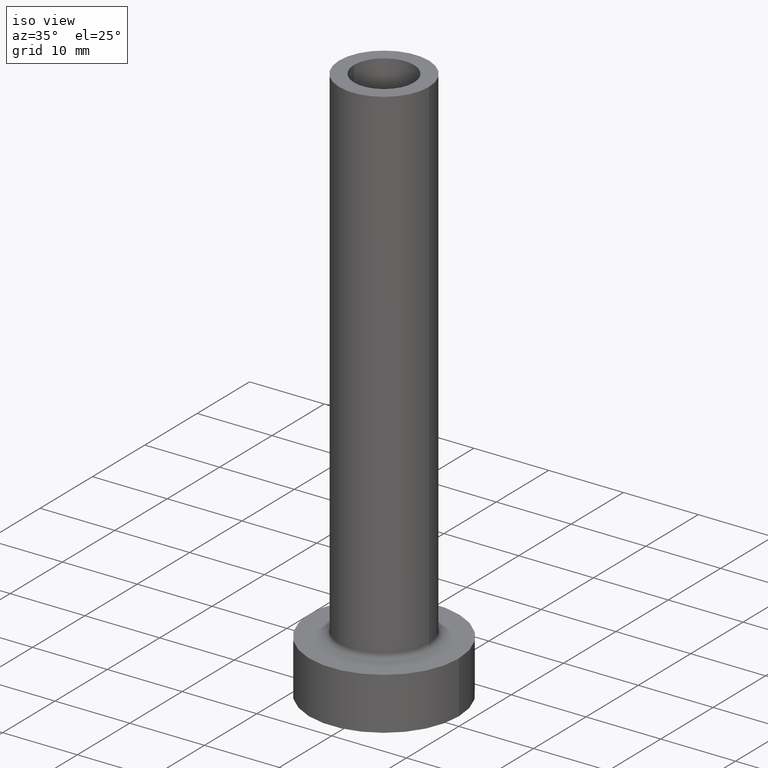
[diagram: clean part render]
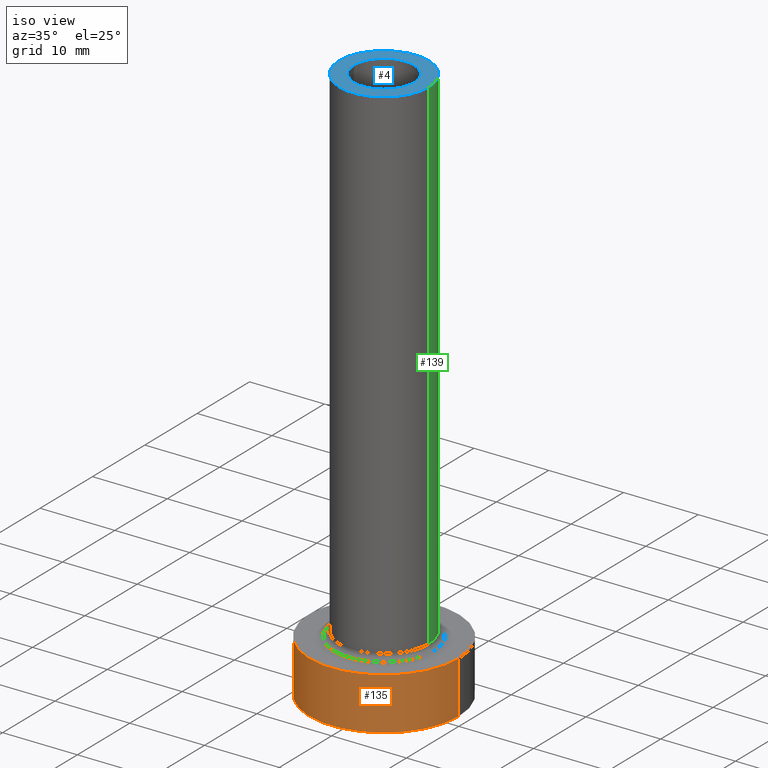
[diagram: same view with three faces highlighted in distinct colors, each labeled with its STEP entity id]
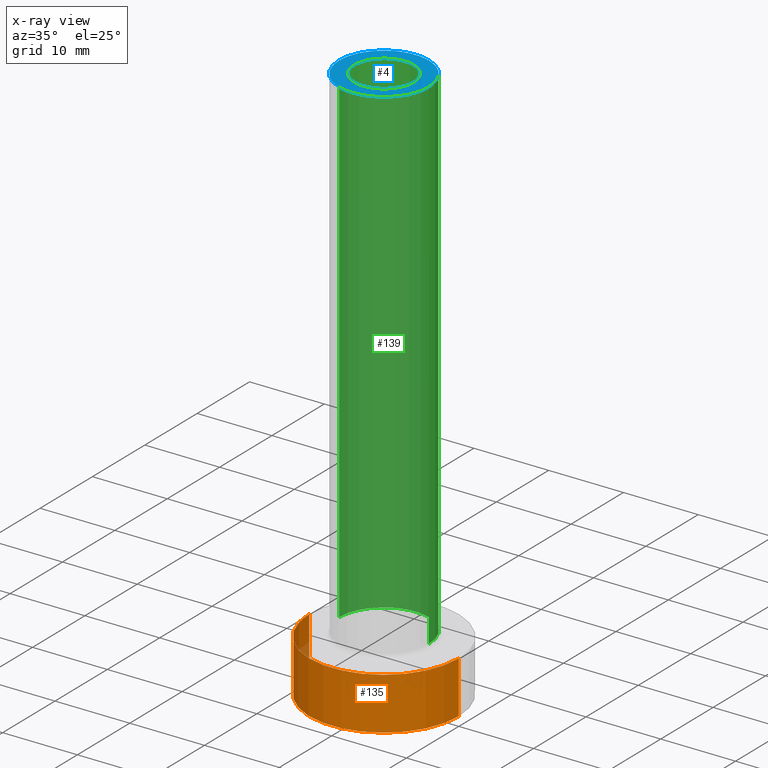
[diagram: x-ray of the same camera — body ghosted, the three highlighted faces saturated]
A machine part, iso view with three faces highlighted in distinct colors.
The next image is the same camera in x-ray (body ghosted, the three faces saturated) — at least one of them is partly hidden behind the body in this view.
Their STEP definitions:

[orange] entity #135 — the highlighted cylindrical surface (partial cylindrical patch) has radius 10 mm, axis along (-0, -0, -1).
#9 = VERTEX_POINT ( 'NONE', #399 ) ;
#10 = VERTEX_POINT ( 'NONE', #187 ) ;
#18 = LINE ( 'NONE', #234, #20 ) ;
#19 = VERTEX_POINT ( 'NONE', #330 ) ;
#20 = VECTOR ( 'NONE', #371, 1000.000000000000000 ) ;
#25 = DIRECTION ( 'NONE',  ( -0.000000000000000000, -0.000000000000000000, -1.000000000000000000 ) ) ;
#28 = DIRECTION ( 'NONE',  ( 1.000000000000000000, 0.000000000000000000, 0.000000000000000000 ) ) ;
#29 = EDGE_CURVE ( 'NONE', #9, #10, #445, .T. ) ;
#44 = CIRCLE ( 'NONE', #353, 10.00000000000000000 ) ;
#59 = CARTESIAN_POINT ( 'NONE',  ( -10.00000000000000000, 0.000000000000000000, 7.000000000000000000 ) ) ;
#104 = ORIENTED_EDGE ( 'NONE', *, *, #235, .F. ) ;
#105 = FACE_OUTER_BOUND ( 'NONE', #379, .T. ) ;
#108 = DIRECTION ( 'NONE',  ( 0.000000000000000000, 0.000000000000000000, 1.000000000000000000 ) ) ;
#111 = EDGE_CURVE ( 'NONE', #19, #9, #232, .T. ) ;
#129 = ORIENTED_EDGE ( 'NONE', *, *, #250, .F. ) ;
#135 = ADVANCED_FACE ( 'NONE', ( #105 ), #269, .T. ) ;
#145 = ORIENTED_EDGE ( 'NONE', *, *, #29, .T. ) ;
#146 = CARTESIAN_POINT ( 'NONE',  ( 0.000000000000000000, 0.000000000000000000, 0.000000000000000000 ) ) ;
#176 = CARTESIAN_POINT ( 'NONE',  ( 0.000000000000000000, 0.000000000000000000, 7.000000000000000000 ) ) ;
#187 = CARTESIAN_POINT ( 'NONE',  ( 10.00000000000000000, 1.224646799147353256E-15, 0.000000000000000000 ) ) ;
#221 = DIRECTION ( 'NONE',  ( 1.000000000000000000, 0.000000000000000000, 0.000000000000000000 ) ) ;
#230 = ORIENTED_EDGE ( 'NONE', *, *, #111, .T. ) ;
#232 = LINE ( 'NONE', #59, #419 ) ;
#234 = CARTESIAN_POINT ( 'NONE',  ( 10.00000000000000000, 1.224646799147353256E-15, 7.000000000000000000 ) ) ;
#235 = EDGE_CURVE ( 'NONE', #364, #10, #18, .T. ) ;
#250 = EDGE_CURVE ( 'NONE', #19, #364, #44, .T. ) ;
#269 = CYLINDRICAL_SURFACE ( 'NONE', #455, 10.00000000000000000 ) ;
#330 = CARTESIAN_POINT ( 'NONE',  ( -10.00000000000000000, 0.000000000000000000, 7.000000000000000000 ) ) ;
#335 = DIRECTION ( 'NONE',  ( 0.000000000000000000, 0.000000000000000000, 1.000000000000000000 ) ) ;
#338 = DIRECTION ( 'NONE',  ( -1.000000000000000000, 0.000000000000000000, 0.000000000000000000 ) ) ;
#342 = CARTESIAN_POINT ( 'NONE',  ( 0.000000000000000000, 0.000000000000000000, 7.000000000000000000 ) ) ;
#353 = AXIS2_PLACEMENT_3D ( 'NONE', #176, #108, #28 ) ;
#364 = VERTEX_POINT ( 'NONE', #453 ) ;
#371 = DIRECTION ( 'NONE',  ( -0.000000000000000000, -0.000000000000000000, -1.000000000000000000 ) ) ;
#379 = EDGE_LOOP ( 'NONE', ( #104, #129, #230, #145 ) ) ;
#390 = AXIS2_PLACEMENT_3D ( 'NONE', #146, #335, #221 ) ;
#399 = CARTESIAN_POINT ( 'NONE',  ( -10.00000000000000000, 0.000000000000000000, 0.000000000000000000 ) ) ;
#419 = VECTOR ( 'NONE', #442, 1000.000000000000000 ) ;
#442 = DIRECTION ( 'NONE',  ( -0.000000000000000000, -0.000000000000000000, -1.000000000000000000 ) ) ;
#445 = CIRCLE ( 'NONE', #390, 10.00000000000000000 ) ;
#453 = CARTESIAN_POINT ( 'NONE',  ( 10.00000000000000000, 1.224646799147353256E-15, 7.000000000000000000 ) ) ;
#455 = AXIS2_PLACEMENT_3D ( 'NONE', #342, #25, #338 ) ;

[blue] entity #4 — the highlighted planar face has unit normal (0, 0, 1).
#2 = VERTEX_POINT ( 'NONE', #180 ) ;
#4 = ADVANCED_FACE ( 'NONE', ( #292, #119 ), #12, .T. ) ;
#12 = PLANE ( 'NONE',  #133 ) ;
#23 = CARTESIAN_POINT ( 'NONE',  ( 4.000000000000000000, 4.898587196589411843E-16, 75.00000000000001421 ) ) ;
#34 = EDGE_LOOP ( 'NONE', ( #459, #420 ) ) ;
#35 = CARTESIAN_POINT ( 'NONE',  ( -4.000000000000000000, 0.000000000000000000, 75.00000000000001421 ) ) ;
#42 = AXIS2_PLACEMENT_3D ( 'NONE', #429, #321, #220 ) ;
#47 = DIRECTION ( 'NONE',  ( 0.000000000000000000, 0.000000000000000000, 1.000000000000000000 ) ) ;
#87 = DIRECTION ( 'NONE',  ( 1.000000000000000000, 0.000000000000000000, 0.000000000000000000 ) ) ;
#94 = DIRECTION ( 'NONE',  ( 1.000000000000000000, 0.000000000000000000, 0.000000000000000000 ) ) ;
#103 = EDGE_CURVE ( 'NONE', #393, #2, #284, .T. ) ;
#112 = AXIS2_PLACEMENT_3D ( 'NONE', #198, #140, #276 ) ;
#119 = FACE_OUTER_BOUND ( 'NONE', #34, .T. ) ;
#133 = AXIS2_PLACEMENT_3D ( 'NONE', #402, #47, #358 ) ;
#140 = DIRECTION ( 'NONE',  ( 0.000000000000000000, 0.000000000000000000, 1.000000000000000000 ) ) ;
#150 = EDGE_LOOP ( 'NONE', ( #223, #406 ) ) ;
#165 = AXIS2_PLACEMENT_3D ( 'NONE', #241, #449, #94 ) ;
#180 = CARTESIAN_POINT ( 'NONE',  ( -6.000000000000000888, 0.000000000000000000, 75.00000000000001421 ) ) ;
#192 = CIRCLE ( 'NONE', #42, 4.000000000000000000 ) ;
#196 = VERTEX_POINT ( 'NONE', #23 ) ;
#198 = CARTESIAN_POINT ( 'NONE',  ( 0.000000000000000000, 0.000000000000000000, 75.00000000000001421 ) ) ;
#220 = DIRECTION ( 'NONE',  ( 1.000000000000000000, 0.000000000000000000, 0.000000000000000000 ) ) ;
#223 = ORIENTED_EDGE ( 'NONE', *, *, #434, .F. ) ;
#241 = CARTESIAN_POINT ( 'NONE',  ( 0.000000000000000000, 0.000000000000000000, 75.00000000000001421 ) ) ;
#244 = EDGE_CURVE ( 'NONE', #2, #393, #412, .T. ) ;
#276 = DIRECTION ( 'NONE',  ( 1.000000000000000000, 0.000000000000000000, 0.000000000000000000 ) ) ;
#284 = CIRCLE ( 'NONE', #165, 6.000000000000000888 ) ;
#292 = FACE_BOUND ( 'NONE', #150, .T. ) ;
#296 = CARTESIAN_POINT ( 'NONE',  ( 0.000000000000000000, 0.000000000000000000, 75.00000000000001421 ) ) ;
#321 = DIRECTION ( 'NONE',  ( 0.000000000000000000, 0.000000000000000000, 1.000000000000000000 ) ) ;
#347 = AXIS2_PLACEMENT_3D ( 'NONE', #296, #388, #87 ) ;
#348 = CARTESIAN_POINT ( 'NONE',  ( 6.000000000000000888, 7.347880794884120722E-16, 75.00000000000001421 ) ) ;
#358 = DIRECTION ( 'NONE',  ( 1.000000000000000000, 0.000000000000000000, -0.000000000000000000 ) ) ;
#374 = CIRCLE ( 'NONE', #347, 4.000000000000000000 ) ;
#388 = DIRECTION ( 'NONE',  ( 0.000000000000000000, 0.000000000000000000, 1.000000000000000000 ) ) ;
#393 = VERTEX_POINT ( 'NONE', #348 ) ;
#402 = CARTESIAN_POINT ( 'NONE',  ( 0.000000000000000000, 0.000000000000000000, 75.00000000000001421 ) ) ;
#406 = ORIENTED_EDGE ( 'NONE', *, *, #423, .F. ) ;
#409 = VERTEX_POINT ( 'NONE', #35 ) ;
#412 = CIRCLE ( 'NONE', #112, 6.000000000000000888 ) ;
#420 = ORIENTED_EDGE ( 'NONE', *, *, #103, .T. ) ;
#423 = EDGE_CURVE ( 'NONE', #196, #409, #192, .T. ) ;
#429 = CARTESIAN_POINT ( 'NONE',  ( 0.000000000000000000, 0.000000000000000000, 75.00000000000001421 ) ) ;
#434 = EDGE_CURVE ( 'NONE', #409, #196, #374, .T. ) ;
#449 = DIRECTION ( 'NONE',  ( 0.000000000000000000, 0.000000000000000000, 1.000000000000000000 ) ) ;
#459 = ORIENTED_EDGE ( 'NONE', *, *, #244, .T. ) ;

[green] entity #139 — the highlighted cylindrical surface (partial cylindrical patch) has radius 6 mm, axis along (-0, -0, -1).
#2 = VERTEX_POINT ( 'NONE', #180 ) ;
#14 = ORIENTED_EDGE ( 'NONE', *, *, #275, .T. ) ;
#27 = DIRECTION ( 'NONE',  ( -0.000000000000000000, -0.000000000000000000, -1.000000000000000000 ) ) ;
#45 = ORIENTED_EDGE ( 'NONE', *, *, #103, .F. ) ;
#63 = EDGE_CURVE ( 'NONE', #179, #279, #219, .T. ) ;
#64 = DIRECTION ( 'NONE',  ( -0.000000000000000000, -0.000000000000000000, -1.000000000000000000 ) ) ;
#94 = DIRECTION ( 'NONE',  ( 1.000000000000000000, 0.000000000000000000, 0.000000000000000000 ) ) ;
#103 = EDGE_CURVE ( 'NONE', #393, #2, #284, .T. ) ;
#114 = CARTESIAN_POINT ( 'NONE',  ( 0.000000000000000000, 0.000000000000000000, 7.699999999999998401 ) ) ;
#128 = CARTESIAN_POINT ( 'NONE',  ( -6.000000000000000888, 0.000000000000000000, 75.00000000000001421 ) ) ;
#134 = CARTESIAN_POINT ( 'NONE',  ( 0.000000000000000000, 0.000000000000000000, 75.00000000000001421 ) ) ;
#139 = ADVANCED_FACE ( 'NONE', ( #312 ), #272, .T. ) ;
#142 = CARTESIAN_POINT ( 'NONE',  ( 6.000000000000000888, 7.347880794884120722E-16, 75.00000000000001421 ) ) ;
#162 = CARTESIAN_POINT ( 'NONE',  ( 6.000000000000000888, 7.347880794884120722E-16, 7.699999999999998401 ) ) ;
#165 = AXIS2_PLACEMENT_3D ( 'NONE', #241, #449, #94 ) ;
#179 = VERTEX_POINT ( 'NONE', #162 ) ;
#180 = CARTESIAN_POINT ( 'NONE',  ( -6.000000000000000888, 0.000000000000000000, 75.00000000000001421 ) ) ;
#203 = LINE ( 'NONE', #128, #222 ) ;
#209 = ORIENTED_EDGE ( 'NONE', *, *, #212, .F. ) ;
#211 = CARTESIAN_POINT ( 'NONE',  ( -6.000000000000000888, 0.000000000000000000, 7.699999999999998401 ) ) ;
#212 = EDGE_CURVE ( 'NONE', #2, #279, #203, .T. ) ;
#219 = CIRCLE ( 'NONE', #236, 6.000000000000000888 ) ;
#222 = VECTOR ( 'NONE', #64, 1000.000000000000000 ) ;
#227 = EDGE_LOOP ( 'NONE', ( #45, #14, #430, #209 ) ) ;
#236 = AXIS2_PLACEMENT_3D ( 'NONE', #114, #254, #273 ) ;
#241 = CARTESIAN_POINT ( 'NONE',  ( 0.000000000000000000, 0.000000000000000000, 75.00000000000001421 ) ) ;
#254 = DIRECTION ( 'NONE',  ( 0.000000000000000000, 0.000000000000000000, 1.000000000000000000 ) ) ;
#272 = CYLINDRICAL_SURFACE ( 'NONE', #438, 6.000000000000000888 ) ;
#273 = DIRECTION ( 'NONE',  ( 1.000000000000000000, 0.000000000000000000, 0.000000000000000000 ) ) ;
#275 = EDGE_CURVE ( 'NONE', #393, #179, #421, .T. ) ;
#279 = VERTEX_POINT ( 'NONE', #211 ) ;
#284 = CIRCLE ( 'NONE', #165, 6.000000000000000888 ) ;
#310 = DIRECTION ( 'NONE',  ( -1.000000000000000000, 0.000000000000000000, 0.000000000000000000 ) ) ;
#312 = FACE_OUTER_BOUND ( 'NONE', #227, .T. ) ;
#348 = CARTESIAN_POINT ( 'NONE',  ( 6.000000000000000888, 7.347880794884120722E-16, 75.00000000000001421 ) ) ;
#367 = VECTOR ( 'NONE', #27, 1000.000000000000000 ) ;
#393 = VERTEX_POINT ( 'NONE', #348 ) ;
#421 = LINE ( 'NONE', #142, #367 ) ;
#430 = ORIENTED_EDGE ( 'NONE', *, *, #63, .T. ) ;
#435 = DIRECTION ( 'NONE',  ( -0.000000000000000000, -0.000000000000000000, -1.000000000000000000 ) ) ;
#438 = AXIS2_PLACEMENT_3D ( 'NONE', #134, #435, #310 ) ;
#449 = DIRECTION ( 'NONE',  ( 0.000000000000000000, 0.000000000000000000, 1.000000000000000000 ) ) ;